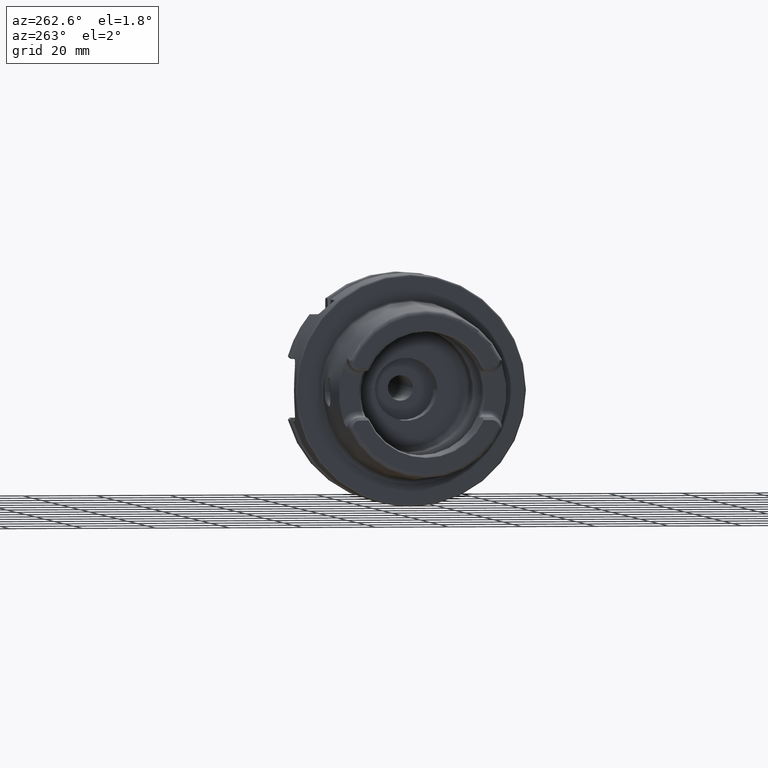
[diagram: clean part render]
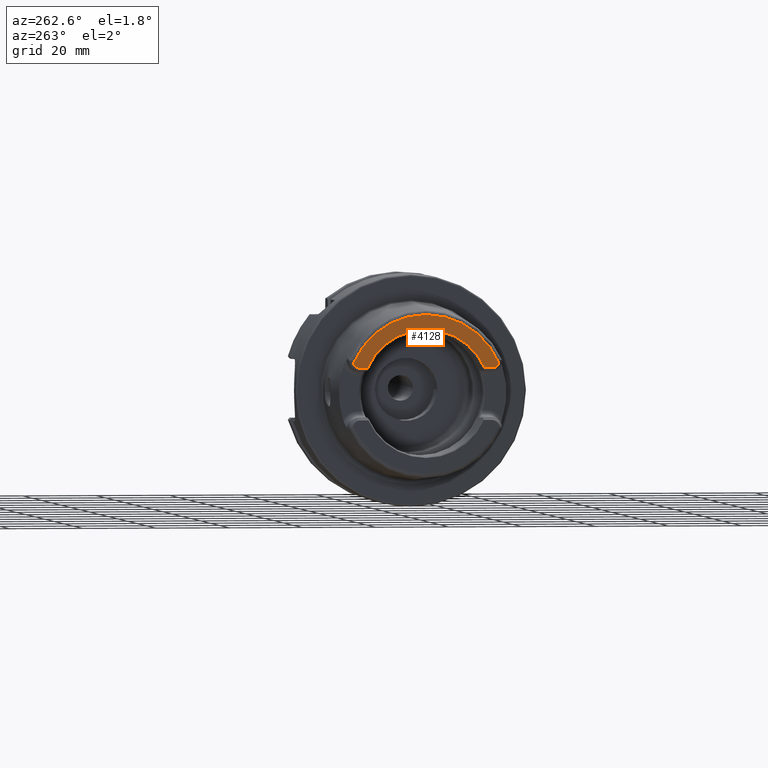
[diagram: same view with one face highlighted and labeled with its STEP entity id]
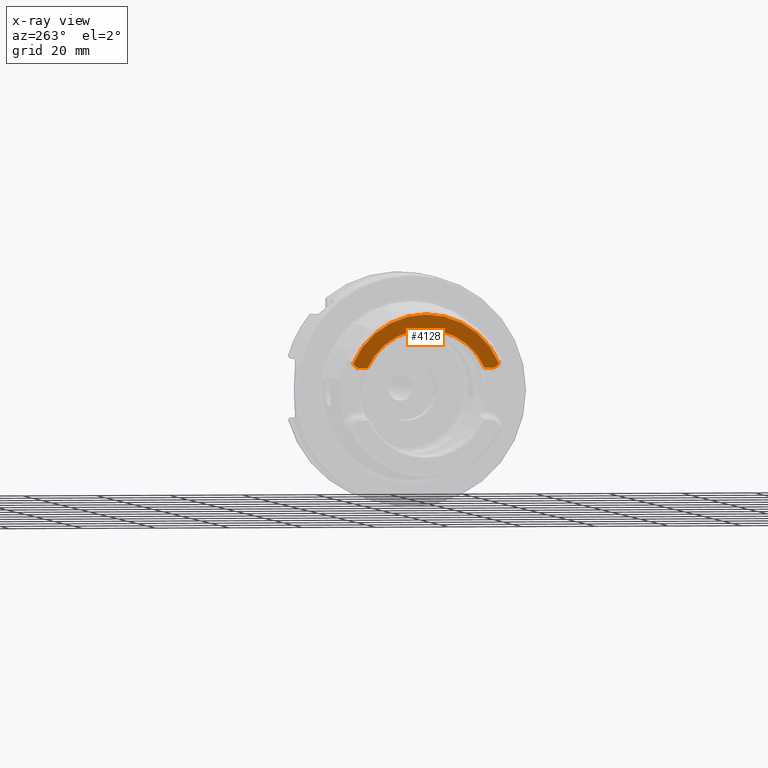
[diagram: x-ray of the same camera — body ghosted, the highlighted face saturated]
A machine part, auxiliary view. The second image highlights one B-rep face of the part: STEP entity #4128.
The next image is the same camera in x-ray: the body ghosted, the highlighted face saturated — about 0% of this face is hidden behind the body in this view.
In plain terms, the highlighted planar face has unit normal (1, 0, 0).
Its self-contained STEP definition (entity closure, byte-faithful):
#1197=DIRECTION('',(0.E0,1.E0,0.E0));
#1198=VECTOR('',#1197,1.981717768605E0);
#1199=CARTESIAN_POINT('',(-3.2E1,1.600828223140E1,7.07E0));
#1200=LINE('',#1199,#1198);
#1201=CARTESIAN_POINT('',(-3.2E1,1.799E1,9.15E0));
#1202=DIRECTION('',(1.E0,0.E0,0.E0));
#1203=DIRECTION('',(0.E0,0.E0,-1.E0));
#1204=AXIS2_PLACEMENT_3D('',#1201,#1202,#1203);
#1206=CARTESIAN_POINT('',(-3.2E1,-1.799E1,9.15E0));
#1207=DIRECTION('',(-1.E0,0.E0,0.E0));
#1208=DIRECTION('',(0.E0,0.E0,-1.E0));
#1209=AXIS2_PLACEMENT_3D('',#1206,#1207,#1208);
#1211=DIRECTION('',(0.E0,-1.E0,0.E0));
#1212=VECTOR('',#1211,1.981717768605E0);
#1213=CARTESIAN_POINT('',(-3.2E1,-1.600828223140E1,7.07E0));
#1214=LINE('',#1213,#1212);
#1338=CARTESIAN_POINT('',(-3.2E1,0.E0,0.E0));
#1339=DIRECTION('',(-1.E0,0.E0,0.E0));
#1340=DIRECTION('',(0.E0,-9.224287428258E-1,3.861673399044E-1));
#1341=AXIS2_PLACEMENT_3D('',#1338,#1339,#1340);
#1573=CARTESIAN_POINT('',(-3.2E1,0.E0,-7.105427357601E-14));
#1574=DIRECTION('',(1.E0,0.E0,0.E0));
#1575=DIRECTION('',(0.E0,9.147589846511E-1,4.04E-1));
#1576=AXIS2_PLACEMENT_3D('',#1573,#1574,#1575);
#2676=CARTESIAN_POINT('',(-3.2E1,-1.600828223140E1,7.07E0));
#2677=CARTESIAN_POINT('',(-3.2E1,-1.799E1,7.07E0));
#2678=VERTEX_POINT('',#2676);
#2679=VERTEX_POINT('',#2677);
#2680=CARTESIAN_POINT('',(-3.2E1,-1.990238974402E1,8.331974653830E0));
#2681=VERTEX_POINT('',#2680);
#2705=CARTESIAN_POINT('',(-3.2E1,1.799E1,7.07E0));
#2707=VERTEX_POINT('',#2705);
#2712=CARTESIAN_POINT('',(-3.2E1,1.600828223140E1,7.07E0));
#2713=VERTEX_POINT('',#2712);
#2714=CARTESIAN_POINT('',(-3.2E1,1.990238974402E1,8.331974653830E0));
#2715=VERTEX_POINT('',#2714);
#4109=CARTESIAN_POINT('',(-3.2E1,0.E0,0.E0));
#4110=DIRECTION('',(1.E0,0.E0,0.E0));
#4111=DIRECTION('',(0.E0,0.E0,1.E0));
#4112=AXIS2_PLACEMENT_3D('',#4109,#4110,#4111);
#4113=PLANE('',#4112);
#4115=ORIENTED_EDGE('',*,*,#4114,.T.);
#4117=ORIENTED_EDGE('',*,*,#4116,.T.);
#4119=ORIENTED_EDGE('',*,*,#4118,.F.);
#4121=ORIENTED_EDGE('',*,*,#4120,.F.);
#4123=ORIENTED_EDGE('',*,*,#4122,.F.);
#4125=ORIENTED_EDGE('',*,*,#4124,.F.);
#4126=EDGE_LOOP('',(#4115,#4117,#4119,#4121,#4123,#4125));
#4127=FACE_OUTER_BOUND('',#4126,.F.);
#4128=ADVANCED_FACE('',(#4127),#4113,.F.);
#1205=CIRCLE('',#1204,2.08E0);
#1210=CIRCLE('',#1209,2.08E0);
#1342=CIRCLE('',#1341,2.157607283902E1);
#1577=CIRCLE('',#1576,1.75E1);
#4114=EDGE_CURVE('',#2713,#2707,#1200,.T.);
#4116=EDGE_CURVE('',#2707,#2715,#1205,.T.);
#4118=EDGE_CURVE('',#2681,#2715,#1342,.T.);
#4120=EDGE_CURVE('',#2679,#2681,#1210,.T.);
#4122=EDGE_CURVE('',#2678,#2679,#1214,.T.);
#4124=EDGE_CURVE('',#2713,#2678,#1577,.T.);